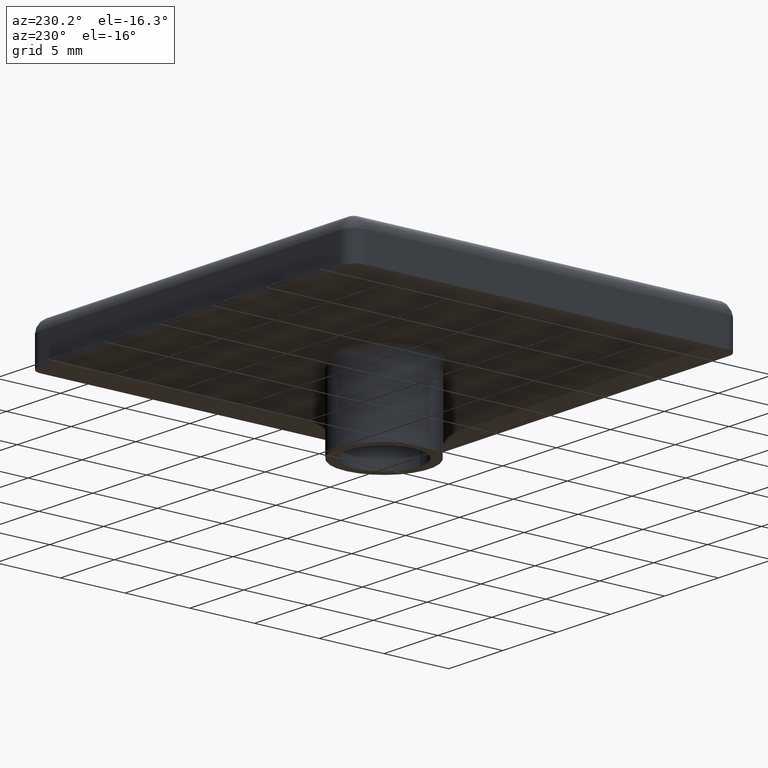
[diagram: clean part render]
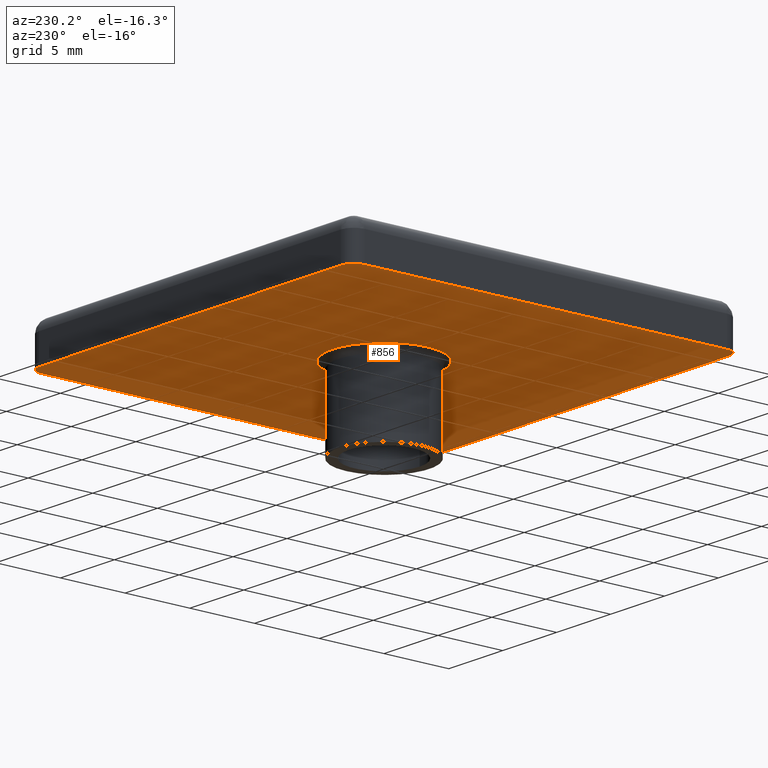
[diagram: same view with one face highlighted and labeled with its STEP entity id]
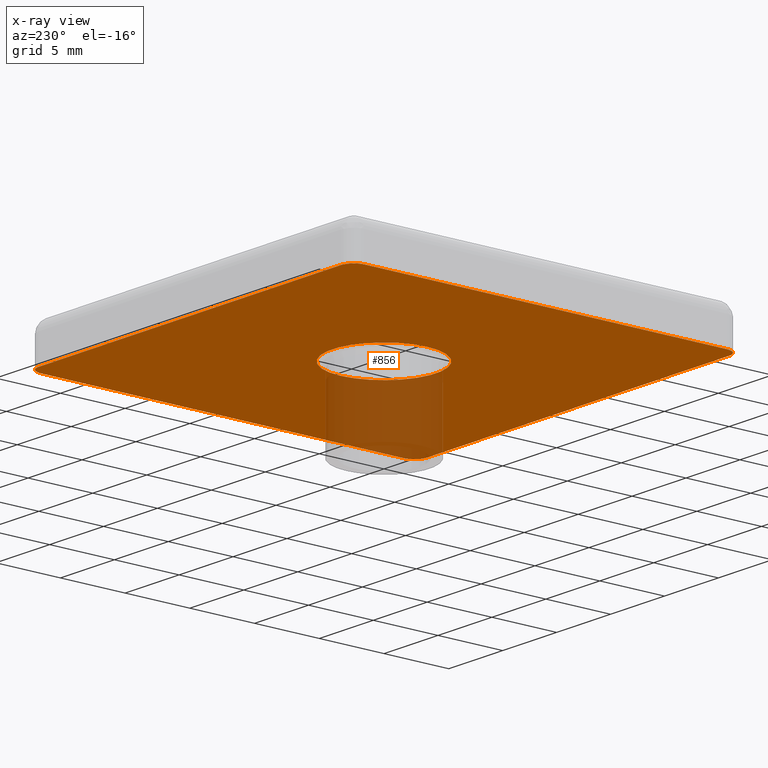
[diagram: x-ray of the same camera — body ghosted, the highlighted face saturated]
A machine part, auxiliary view. The second image highlights one B-rep face of the part: STEP entity #856.
The next image is the same camera in x-ray: the body ghosted, the highlighted face saturated — about 13% of this face is hidden behind the body in this view.
In plain terms, the highlighted planar face has unit normal (0, 0, 1).
Its self-contained STEP definition (entity closure, byte-faithful):
#7=CARTESIAN_POINT('',(14.0,15.000000000033310,0.0));
#8=VERTEX_POINT('',#7);
#26=CARTESIAN_POINT('',(15.0,14.000000000033310,0.0));
#27=VERTEX_POINT('',#26);
#34=CARTESIAN_POINT('',(14.0,14.000000000033310,0.0));
#35=DIRECTION('',(0.0,0.0,-1.0));
#36=DIRECTION('',(0.0,1.0,0.0));
#37=AXIS2_PLACEMENT_3D('',#34,#35,#36);
#38=CIRCLE('',#37,1.0);
#39=EDGE_CURVE('',#8,#27,#38,.T.);
#89=CARTESIAN_POINT('',(-13.999999999999996,15.000000000033303,0.0));
#90=VERTEX_POINT('',#89);
#91=CARTESIAN_POINT('',(14.0,15.000000000033310,0.0));
#92=DIRECTION('',(-1.0,0.0,0.0));
#93=VECTOR('',#92,27.999999999999996);
#94=LINE('',#91,#93);
#95=EDGE_CURVE('',#8,#90,#94,.T.);
#120=CARTESIAN_POINT('',(-14.999999999999996,14.000000000033303,0.0));
#121=VERTEX_POINT('',#120);
#138=CARTESIAN_POINT('',(-13.999999999999996,14.000000000033303,0.0));
#139=DIRECTION('',(0.0,0.0,-1.0));
#140=DIRECTION('',(-1.0,0.0,0.0));
#141=AXIS2_PLACEMENT_3D('',#138,#139,#140);
#142=CIRCLE('',#141,1.0);
#143=EDGE_CURVE('',#121,#90,#142,.T.);
#153=CARTESIAN_POINT('',(-15.0,-13.999999999966697,0.0));
#154=VERTEX_POINT('',#153);
#155=CARTESIAN_POINT('',(-14.999999999999996,14.000000000033303,0.0));
#156=DIRECTION('',(0.0,-1.0,0.0));
#157=VECTOR('',#156,28.0);
#158=LINE('',#155,#157);
#159=EDGE_CURVE('',#121,#154,#158,.T.);
#184=CARTESIAN_POINT('',(-14.0,-14.999999999966697,0.0));
#185=VERTEX_POINT('',#184);
#202=CARTESIAN_POINT('',(-14.0,-13.999999999966697,0.0));
#203=DIRECTION('',(0.0,0.0,-1.0));
#204=DIRECTION('',(0.0,-1.0,0.0));
#205=AXIS2_PLACEMENT_3D('',#202,#203,#204);
#206=CIRCLE('',#205,1.0);
#207=EDGE_CURVE('',#185,#154,#206,.T.);
#217=CARTESIAN_POINT('',(14.0,-14.999999999966697,0.0));
#218=VERTEX_POINT('',#217);
#219=CARTESIAN_POINT('',(-14.0,-14.999999999966697,0.0));
#220=DIRECTION('',(1.0,0.0,0.0));
#221=VECTOR('',#220,28.0);
#222=LINE('',#219,#221);
#223=EDGE_CURVE('',#185,#218,#222,.T.);
#248=CARTESIAN_POINT('',(15.0,-13.999999999966697,0.0));
#249=VERTEX_POINT('',#248);
#266=CARTESIAN_POINT('',(14.0,-13.999999999966697,0.0));
#267=DIRECTION('',(0.0,0.0,-1.0));
#268=DIRECTION('',(1.0,0.0,0.0));
#269=AXIS2_PLACEMENT_3D('',#266,#267,#268);
#270=CIRCLE('',#269,1.0);
#271=EDGE_CURVE('',#249,#218,#270,.T.);
#281=CARTESIAN_POINT('',(15.0,-13.999999999966697,0.0));
#282=DIRECTION('',(0.0,1.0,0.0));
#283=VECTOR('',#282,28.000000000000007);
#284=LINE('',#281,#283);
#285=EDGE_CURVE('',#249,#27,#284,.T.);
#821=CARTESIAN_POINT('',(-18.000001016313220,-18.000001016273252,0.0));
#822=DIRECTION('',(0.0,0.0,1.0));
#823=DIRECTION('',(1.0,0.0,0.0));
#824=AXIS2_PLACEMENT_3D('',#821,#822,#823);
#825=PLANE('',#824);
#826=ORIENTED_EDGE('',*,*,#271,.T.);
#827=ORIENTED_EDGE('',*,*,#223,.F.);
#828=ORIENTED_EDGE('',*,*,#207,.T.);
#829=ORIENTED_EDGE('',*,*,#159,.F.);
#830=ORIENTED_EDGE('',*,*,#143,.T.);
#831=ORIENTED_EDGE('',*,*,#95,.F.);
#832=ORIENTED_EDGE('',*,*,#39,.T.);
#833=ORIENTED_EDGE('',*,*,#285,.F.);
#834=EDGE_LOOP('',(#826,#827,#828,#829,#830,#831,#832,#833));
#835=FACE_OUTER_BOUND('',#834,.T.);
#836=CARTESIAN_POINT('',(-4.0,0.0,0.0));
#837=VERTEX_POINT('',#836);
#838=CARTESIAN_POINT('',(4.0,0.0,0.0));
#839=VERTEX_POINT('',#838);
#840=CARTESIAN_POINT('',(0.0,0.0,0.0));
#841=DIRECTION('',(0.0,0.0,-1.0));
#842=DIRECTION('',(1.0,0.0,0.0));
#843=AXIS2_PLACEMENT_3D('',#840,#841,#842);
#844=CIRCLE('',#843,4.0);
#845=EDGE_CURVE('',#837,#839,#844,.T.);
#846=ORIENTED_EDGE('',*,*,#845,.F.);
#847=CARTESIAN_POINT('',(0.0,0.0,0.0));
#848=DIRECTION('',(0.0,0.0,-1.0));
#849=DIRECTION('',(1.0,0.0,0.0));
#850=AXIS2_PLACEMENT_3D('',#847,#848,#849);
#851=CIRCLE('',#850,4.0);
#852=EDGE_CURVE('',#839,#837,#851,.T.);
#853=ORIENTED_EDGE('',*,*,#852,.F.);
#854=EDGE_LOOP('',(#846,#853));
#855=FACE_BOUND('',#854,.T.);
#856=ADVANCED_FACE('',(#835,#855),#825,.F.);